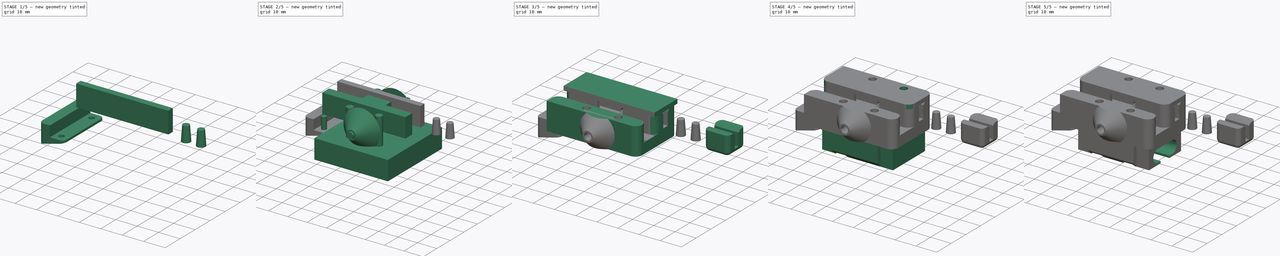
[diagram: build sequence overview — one tinted view per stage of 5, left to right]
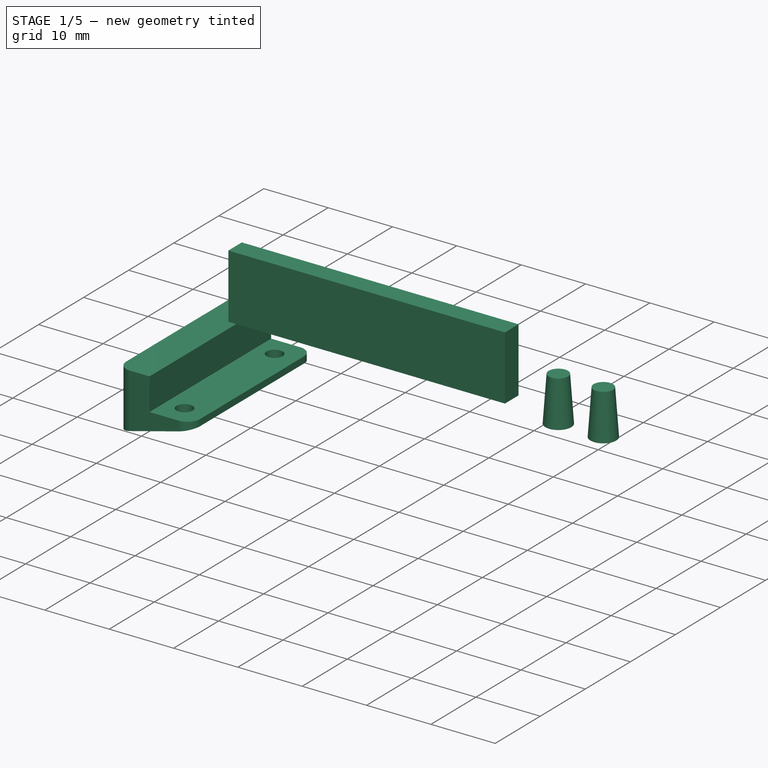
[diagram: stage 1 of 5 — iso view after this stage's code; geometry added in this stage tinted green]
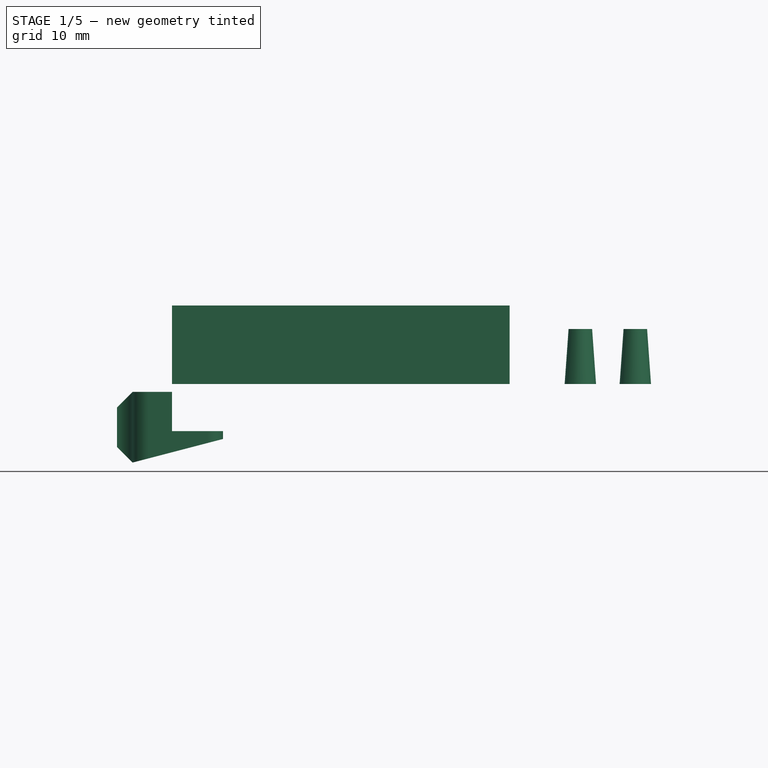
[diagram: stage 1 of 5 — front view after this stage's code; geometry added in this stage tinted green]
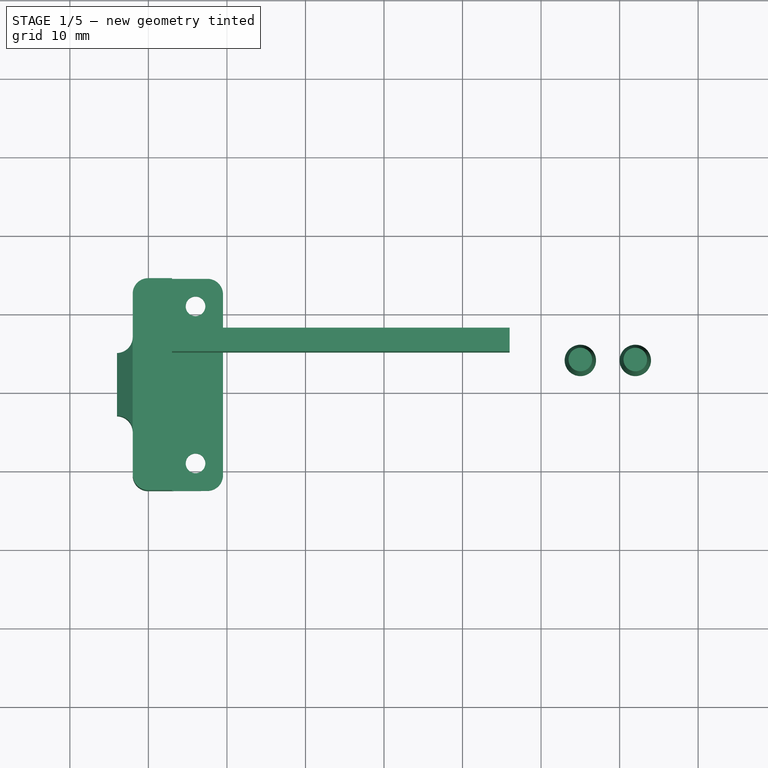
[diagram: stage 1 of 5 — top view after this stage's code; geometry added in this stage tinted green]
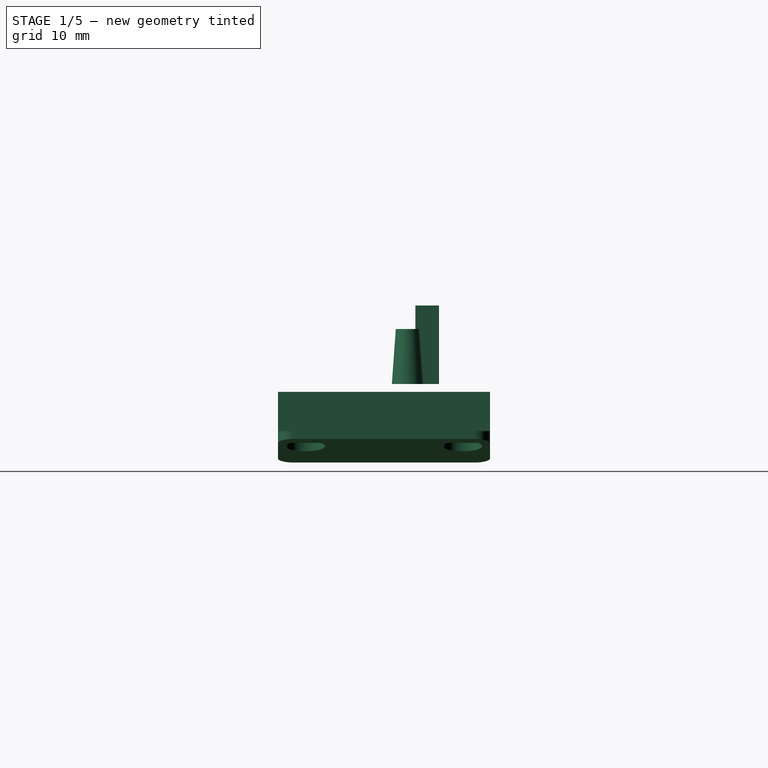
[diagram: stage 1 of 5 — right view after this stage's code; geometry added in this stage tinted green]
FCSTD DOCUMENT  (FreeCAD 0.14R3700 (Git))
Label: Igus-Carriage
License: CC-BY 3.0
LicenseURL: http://creativecommons.org/licenses/by/3.0/
objects: Part::Cylinder×24, Part::Box×17, Part::MultiFuse×12, Part::Cut×11, Part::Chamfer×6, Part::Cone×4, Part::Fillet×4, App::MeasureDistance×2, Sketcher::SketchObject×1, PartDesign::Pad×1, Part::Wedge×1
note: 82 computed .brp shape members not serialized (recipe doc carries the construction recipe); baked Part::Feature solids carry a one-line shape summary decoded from their .brp

FEATURE [Part::Box] Box026  label="DeltaBeltPocketRight"
  Height = 10
  Length = 43
  Placement = pos=(-7,15,16) rot=(0,0,1;0rad)
  Width = 3
FEATURE [Part::Cylinder] Cylinder059  label="Delta-M2.5-Head-1"
  Angle = 360
  Height = 2.5
  Placement = pos=(-4,1,6) rot=(0,0,1;0rad)
  Radius = 2.5
FEATURE [Part::Cylinder] Cylinder060  label="Delta-M2.5-Head-2"
  Angle = 360
  Height = 2.5
  Placement = pos=(-4,21,6) rot=(0,0,1;0rad)
  Radius = 2.5
FEATURE [Part::Cylinder] Cylinder061  label="Delta-M2.5-003"
  Angle = 360
  Height = 7
  Placement = pos=(-4,1,4) rot=(0,0,1;0rad)
  Radius = 1.25
FEATURE [Part::Cylinder] Cylinder062  label="Delta-M2.5-004"
  Angle = 360
  Height = 7
  Placement = pos=(-4,21,4) rot=(0,0,1;0rad)
  Radius = 1.25
FEATURE [Part::Cylinder] Cylinder063  label="Delta-M2.5-Top"
  Angle = 360
  Height = 7.5
  Placement = pos=(-15,11,10.5) rot=(0,1,0;1.5708rad)
  Radius = 1.25
FEATURE [Part::Box] Box028  label="DeltaCube"
  Height = 5
  Length = 6.5
  Placement = pos=(-7,-2.5,10) rot=(0,0,1;0rad)
  Width = 27
FEATURE [Part::Box] Box029  label="Cube010"
  Height = 9
  Length = 2
  Placement = pos=(-14,7,6) rot=(0,0,1;0rad)
  Width = 8
FEATURE [Part::MultiFuse] Fusion032  label="DeltaFusion"
  Shapes = -> [Cylinder059,Cylinder060,Cylinder061,Cylinder063,Box028,Cylinder062]
FEATURE [Part::Cone] Cone002  label="ConeGT2-1"
  Angle = 360
  Height = 7
  Placement = pos=(45,14,16) rot=(0,0,1;0rad)
  Radius1 = 2
  Radius2 = 1.5
FEATURE [Part::Cone] Cone003  label="ConeGT2-2"
  Angle = 360
  Height = 7
  Placement = pos=(52,14,16) rot=(0,0,1;0rad)
  Radius1 = 2
  Radius2 = 1.5
FEATURE [Part::Wedge] Wedge
  Placement = pos=(-12,24.5,6) rot=(0,0,-1;1.5708rad)
  X2max = 27
  X2min = 0
  Xmax = 27
  Xmin = 0
  Ymax = 11.5
  Ymin = 0
  Z2max = 9
  Z2min = 3
  Zmax = 9
  Zmin = 0
FEATURE [Part::MultiFuse] Fusion035
  Shapes = -> [Wedge,Box029]
FEATURE [Part::Cut] Cut047
  Base = -> Fusion035
  Tool = -> Fusion032
FEATURE [Part::Fillet] Fillet
  Base = -> Cut047
  Edges = 6 edges r=1.99: [Edge4,Edge6,Edge18,Edge28,Edge29,Edge30]
FEATURE [Part::Chamfer] Chamfer005  label="Contact-Adjust"
  Base = -> Fillet
  Edges = 2 edges r=1.99: [Edge46,Edge54]
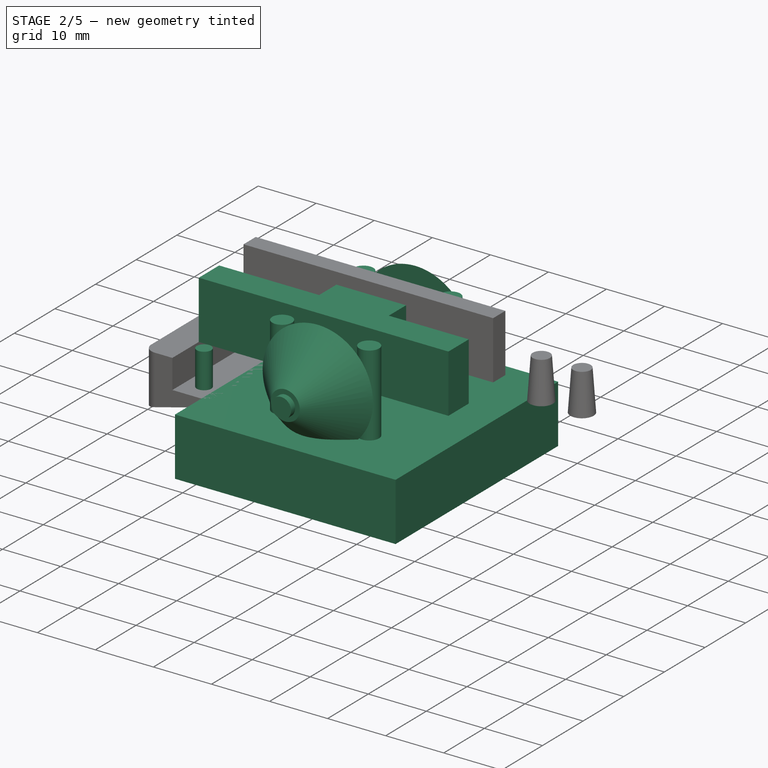
[diagram: stage 2 of 5 — iso view after this stage's code; geometry added in this stage tinted green]
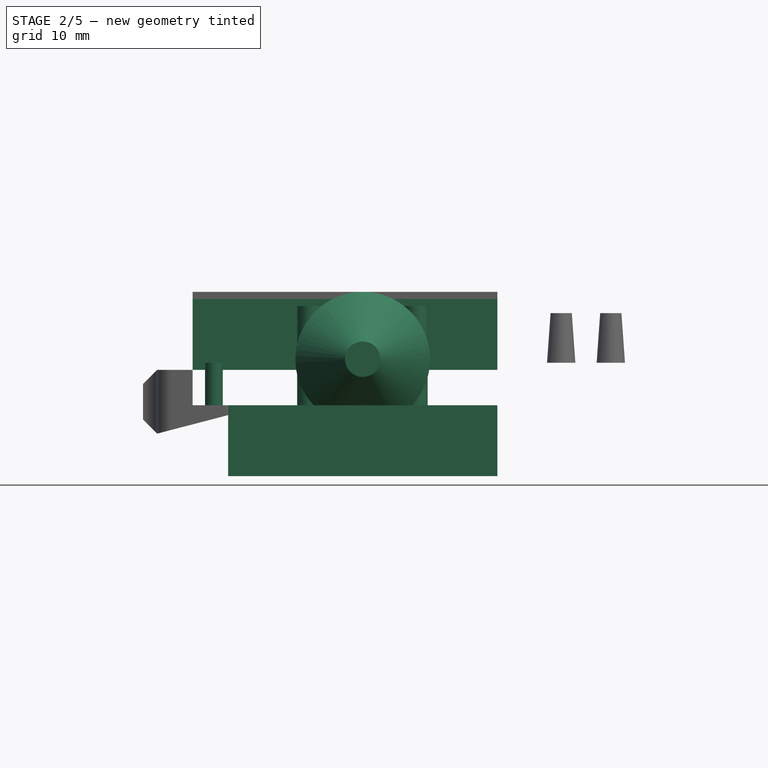
[diagram: stage 2 of 5 — front view after this stage's code; geometry added in this stage tinted green]
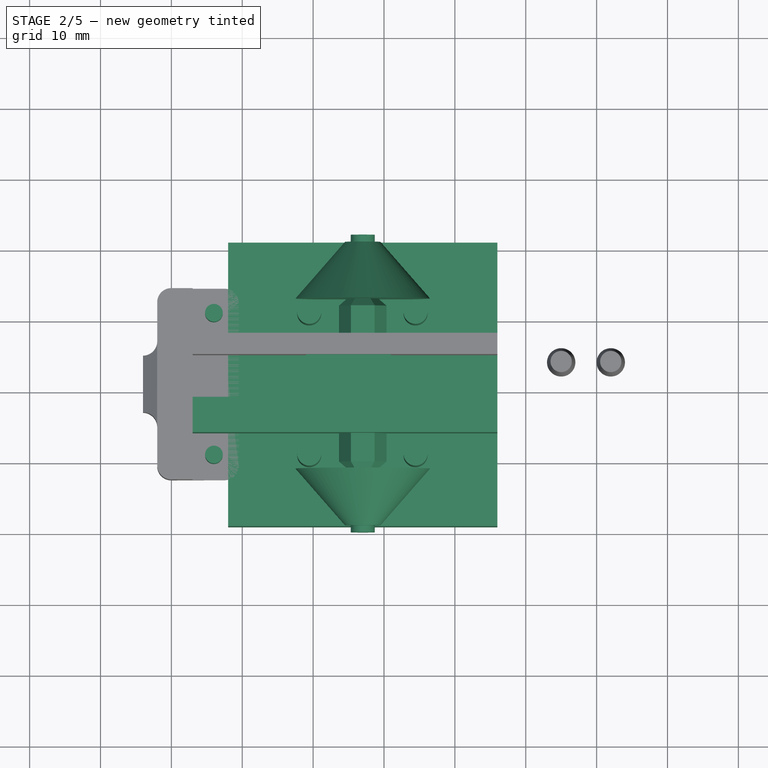
[diagram: stage 2 of 5 — top view after this stage's code; geometry added in this stage tinted green]
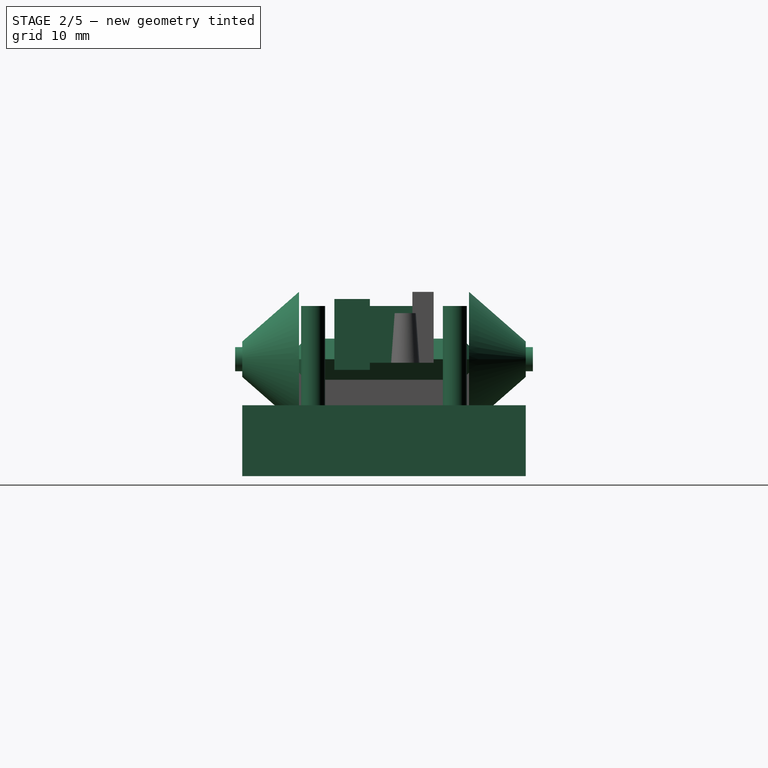
[diagram: stage 2 of 5 — right view after this stage's code; geometry added in this stage tinted green]
FEATURE [Part::Cylinder] Cylinder  label="DeltaM3Bore"
  Angle = 360
  Height = 42
  Placement = pos=(17,32,16.5) rot=(1,0,0;1.5708rad)
  Radius = 1.7
FEATURE [Part::Cone] Cone  label="ConeLeft"
  Angle = 360
  Height = 8
  Placement = pos=(17,-9,16.5) rot=(-1,0,0;1.5708rad)
  Radius1 = 2.5
  Radius2 = 9.5
FEATURE [Part::Cylinder] Cylinder011  label="Delta-M3-1"
  Angle = 360
  Height = 14
  Placement = pos=(9.45,1,10) rot=(0,0,1;0rad)
  Radius = 1.7
FEATURE [Part::Cylinder] Cylinder012  label="Delta-M3-2"
  Angle = 360
  Height = 14
  Placement = pos=(24.45,1,10) rot=(0,0,1;0rad)
  Radius = 1.7
FEATURE [Part::Cylinder] Cylinder013  label="Delta-M3-3"
  Angle = 360
  Height = 14
  Placement = pos=(9.45,21,10) rot=(0,0,1;0rad)
  Radius = 1.7
FEATURE [Part::Cylinder] Cylinder014  label="Delta-M3-4"
  Angle = 360
  Height = 14
  Placement = pos=(24.45,21,10) rot=(0,0,1;0rad)
  Radius = 1.7
FEATURE [Part::Cone] Cone001  label="ConeRight"
  Angle = 360
  Height = 8
  Placement = pos=(17,31,16.5) rot=(1,0,0;1.5708rad)
  Radius1 = 2.5
  Radius2 = 9.5
FEATURE [Part::Box] Box010  label="DeltaCutOffBottom"
  Height = 10
  Length = 38
  Placement = pos=(-2,-9,0) rot=(0,0,1;0rad)
  Width = 40
FEATURE [Sketcher::SketchObject] Sketch
  Placement = pos=(0,0,0) rot=(1,0,0;1.5708rad)
  sketch-geometry (6):
    g0: LineSegment StartX=-2.9 StartY=1.67432 StartZ=0 EndX=-2.9 EndY=-1.67432 EndZ=0
    g1: LineSegment StartX=-2.9 StartY=-1.67432 StartZ=0 EndX=0 EndY=-3.34863 EndZ=0
    g2: LineSegment StartX=0 StartY=-3.34863 StartZ=0 EndX=2.9 EndY=-1.67432 EndZ=0
    g3: LineSegment StartX=2.9 StartY=-1.67432 StartZ=0 EndX=2.9 EndY=1.67432 EndZ=0
    g4: LineSegment StartX=2.9 StartY=1.67432 StartZ=0 EndX=0 EndY=3.34863 EndZ=0
    g5: LineSegment StartX=0 StartY=3.34863 StartZ=0 EndX=-2.9 EndY=1.67432 EndZ=0
  constraints (18):
    c: Vertical(g0)
    c: Coincident(g0,g1)
    c: PointOnObject(g1,g-2)
    c: Coincident(g1,g2)
    c: Coincident(g2,g3)
    c: Vertical(g3)
    c: Coincident(g3,g4)
    c: PointOnObject(g4,g-2)
    c: Coincident(g4,g5)
    c: Coincident(g5,g0)
    c: Equal(g5,g0)
    c: Equal(g0,g1)
    c: Equal(g1,g2)
    c: Equal(g2,g3)
    c: Equal(g3,g4)
    c: Angle(g0,g5) = 2.0944
    c: Symmetric(g4,g1,g-1)
    c: DistanceX(g0,g3) = 5.8
FEATURE [PartDesign::Pad] Pad  label="Nut"
  Length = 24
  Length2 = 100
  Placement = pos=(0,0,0) rot=(1,0,0;1.5708rad)
  Sketch = -> Sketch
  Type = 0
FEATURE [Part::Chamfer] Chamfer002  label="DeltaNutTunnel"
  Base = -> Pad
  Edges = 12 edges r=1: [Edge3,Edge4,Edge6,Edge7,Edge9,Edge10,Edge12,Edge13,Edge15,Edge16,Edge17,Edge18]
  Placement = pos=(17,23,16.5) rot=(0,1,0;0.523599rad)
FEATURE [Part::Box] Box012  label="DeltaCutOutNutTunnel"
  Height = 8
  Length = 12
  Placement = pos=(9,4,16) rot=(0,0,1;0rad)
  Width = 14
FEATURE [Part::Box] Box016  label="DeltaBeltPocketLeft"
  Height = 10
  Length = 43
  Placement = pos=(-7,4,15) rot=(0,0,1;0rad)
  Width = 5
FEATURE [Part::Cylinder] Cylinder055  label="Delta-M2.5-1"
  Angle = 360
  Height = 7
  Placement = pos=(-4,1,9) rot=(0,0,1;0rad)
  Radius = 1.25
FEATURE [Part::Cylinder] Cylinder056  label="Delta-M2.5-2"
  Angle = 360
  Height = 7
  Placement = pos=(-4,21,9) rot=(0,0,1;0rad)
  Radius = 1.25
FEATURE [Part::MultiFuse] Fusion023  label="Cones"
  Shapes = -> [Cone001,Cone]
FEATURE [Part::MultiFuse] Fusion034  label="DeltaFusion001"
  Shapes = -> [Box012,Cylinder056,Cylinder011,Cylinder012,Cylinder014,Cylinder013,Box016,Cylinder055,Chamfer002,Cylinder,Box026]
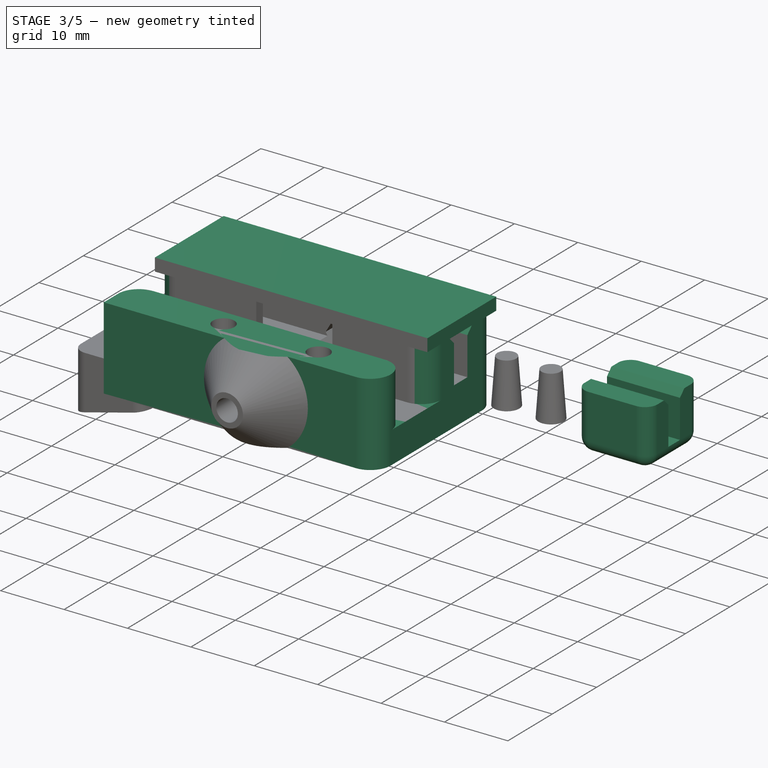
[diagram: stage 3 of 5 — iso view after this stage's code; geometry added in this stage tinted green]
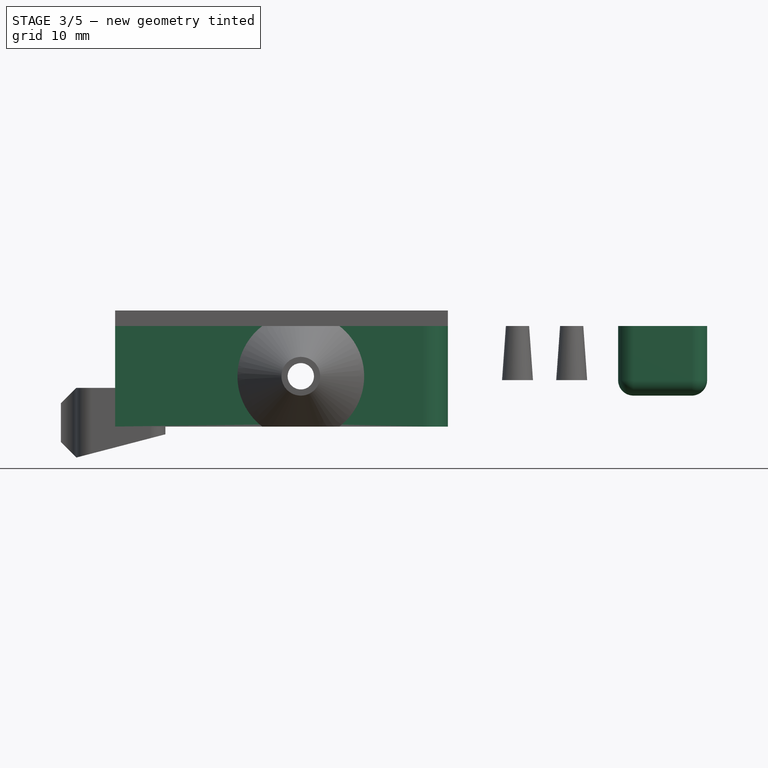
[diagram: stage 3 of 5 — front view after this stage's code; geometry added in this stage tinted green]
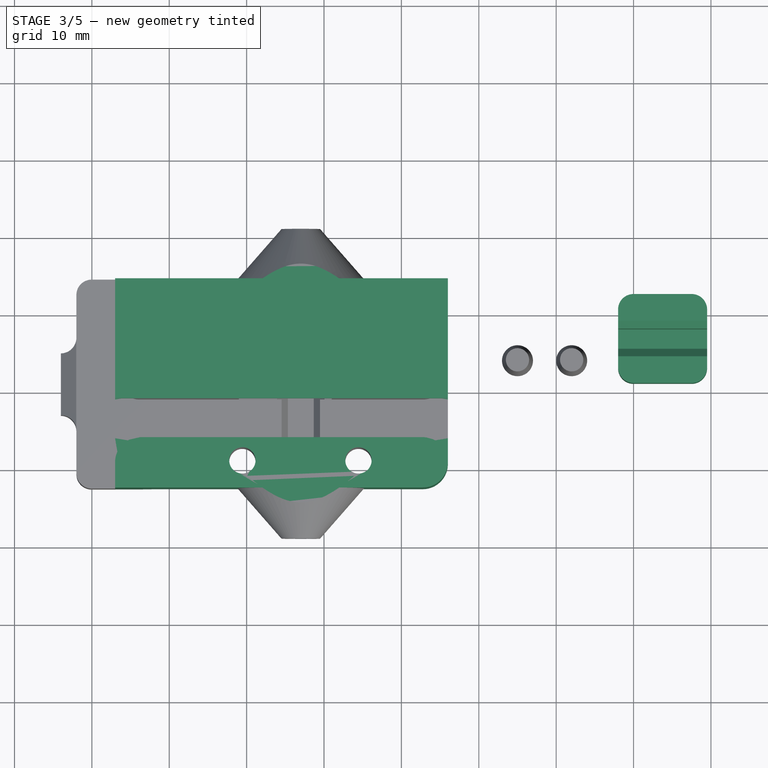
[diagram: stage 3 of 5 — top view after this stage's code; geometry added in this stage tinted green]
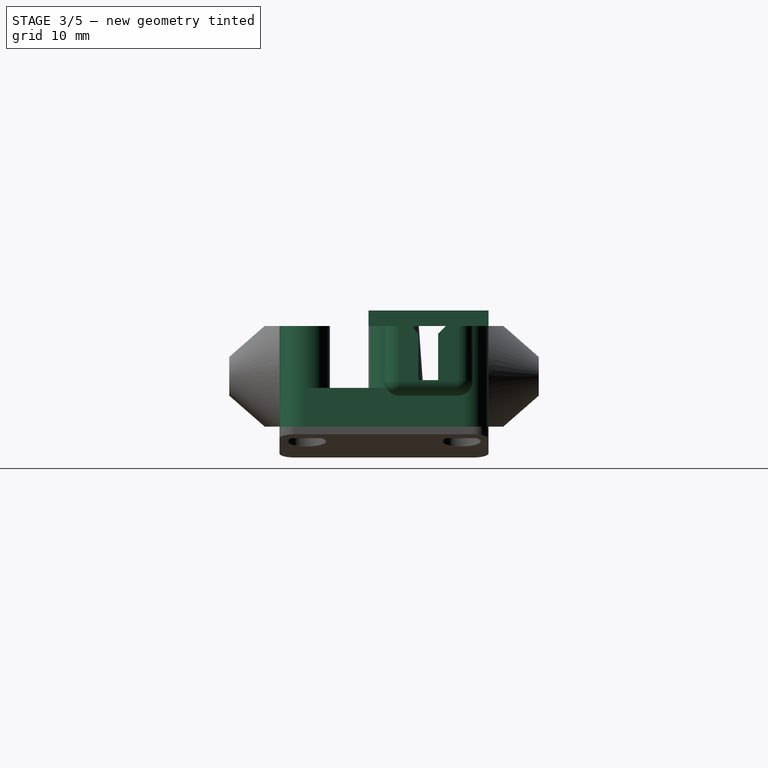
[diagram: stage 3 of 5 — right view after this stage's code; geometry added in this stage tinted green]
FEATURE [App::MeasureDistance] Distance  label="Distance: 20.000"
  Distance = 20
  P1 = (8,21,10.2)
  P2 = (8,1,10.2)
FEATURE [App::MeasureDistance] Distance001  label="Distance: 15.000"
  Distance = 15
  P1 = (9.5,-0.5,10.2)
  P2 = (24.5,-0.5,10.2)
FEATURE [Part::Box] Box005  label="Base"
  Height = 13
  Length = 43
  Placement = pos=(-7,-2.5,10) rot=(0,0,1;0rad)
  Width = 27
FEATURE [Part::Box] Box011  label="DeltaCutOffTop"
  Height = 10
  Length = 38
  Placement = pos=(-2,-9,23) rot=(0,0,1;0rad)
  Width = 40
FEATURE [Part::Box] Box020  label="Cube008"
  Height = 2
  Length = 43
  Placement = pos=(-7,9,23) rot=(0,0,1;0rad)
  Width = 15.5
FEATURE [Part::Cylinder] Cylinder057  label="DeltaCylinderM3"
  Angle = 360
  Height = 2
  Placement = pos=(9.5,21,23) rot=(0,0,1;0rad)
  Radius = 1.7
FEATURE [Part::Box] Box022  label="BeltClipLeft"
  Height = 7
  Length = 11.5
  Placement = pos=(40,9,16) rot=(0,0,1;0rad)
  Width = 4.45
FEATURE [Part::Box] Box023  label="BeltClipRight"
  Height = 7
  Length = 11.5
  Placement = pos=(40,16.05,16) rot=(0,0,1;0rad)
  Width = 4.45
FEATURE [Part::Box] Box025  label="BeltClipBase"
  Height = 2
  Length = 11.5
  Placement = pos=(40,9,14) rot=(0,0,1;0rad)
  Width = 11.5
FEATURE [Part::Cut] Cut039  label="Cut048"
  Base = -> Fusion023
  Tool = -> Box010
FEATURE [Part::Cut] Cut040  label="CutCones"
  Base = -> Cut039
  Tool = -> Box011
FEATURE [Part::MultiFuse] Fusion030
  Shapes = -> [Box022,Box025,Box023]
FEATURE [Part::Chamfer] Chamfer003
  Base = -> Fusion030
  Edges = 2 edges r=1: [Edge4,Edge33]
FEATURE [Part::Fillet] Fillet008  label="Belt-Clip"
  Base = -> Chamfer003
  Edges = 8 edges r=1.99: [Edge8,Edge12,Edge17,Edge21,Edge24,Edge28,Edge32,Edge36]
  Placement = pos=(18,2,0) rot=(0,0,1;0rad)
FEATURE [Part::MultiFuse] Fusion033
  Shapes = -> [Box005,Cut040]
FEATURE [Part::Cut] Cut046
  Base = -> Fusion033
  Tool = -> Fusion034
FEATURE [Part::Chamfer] Chamfer004
  Base = -> Cut046
  Edges = 7 edges: [Edge34 r=1,Edge37 r=4.5,Edge41 r=1,Edge48 r=1,Edge49 r=1,Edge150 r=1,Edge151 r=4.5]
FEATURE [Part::Fillet] Fillet009  label="Igus-Carriage"
  Base = -> Chamfer004
  Edges = 6 edges r=3.24: [Edge3,Edge7,Edge108,Edge111,Edge117,Edge118]
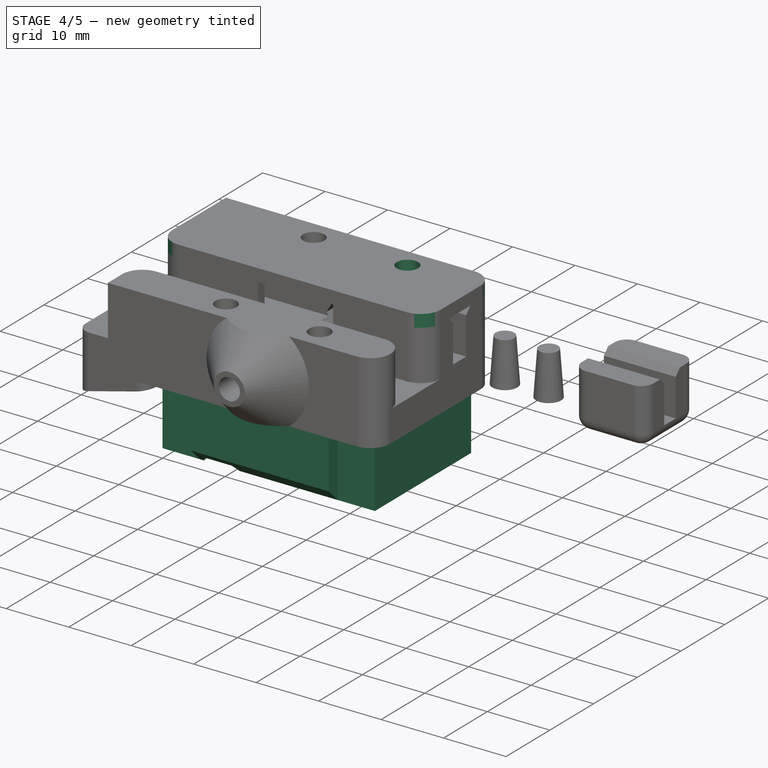
[diagram: stage 4 of 5 — iso view after this stage's code; geometry added in this stage tinted green]
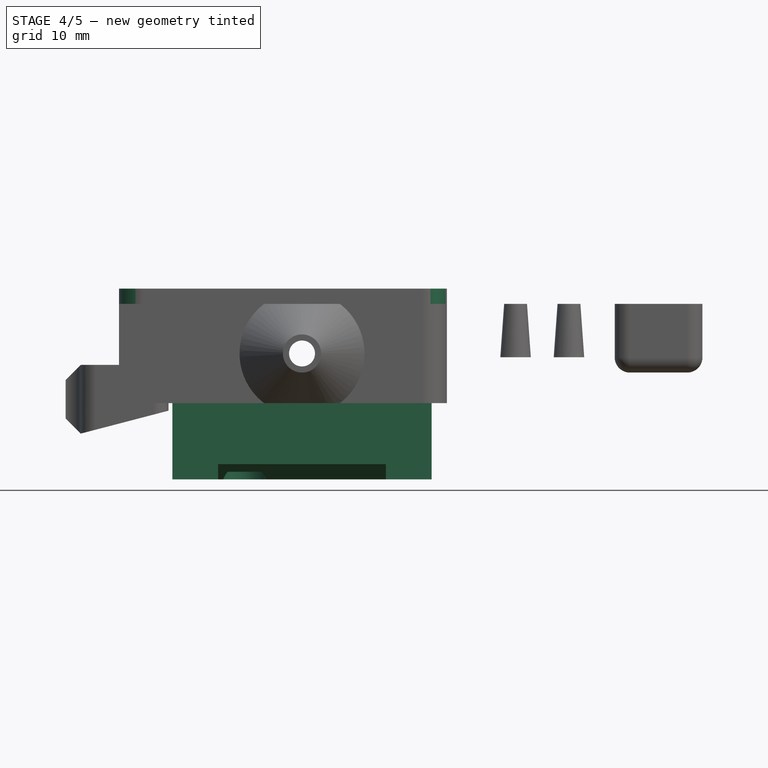
[diagram: stage 4 of 5 — front view after this stage's code; geometry added in this stage tinted green]
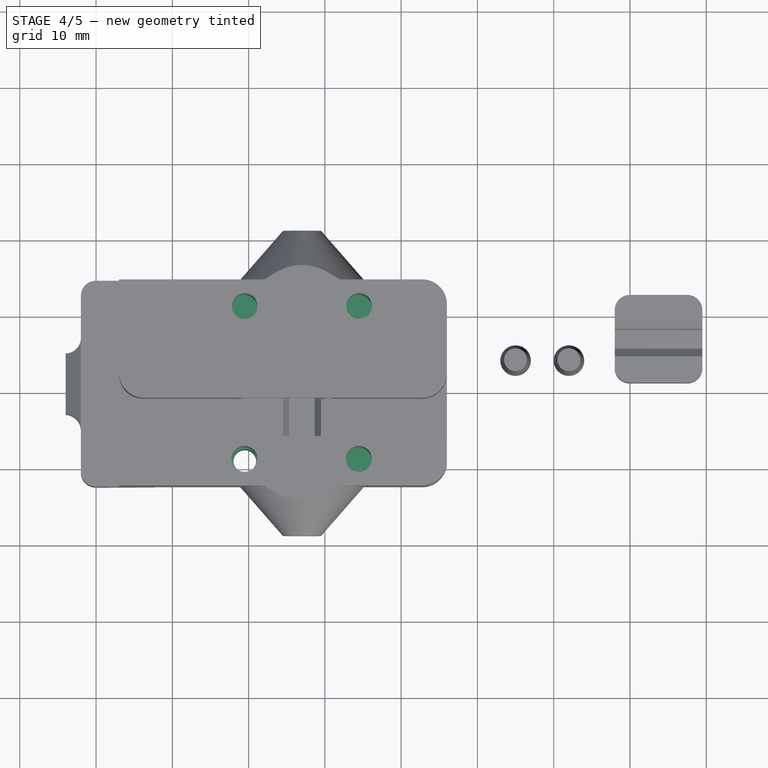
[diagram: stage 4 of 5 — top view after this stage's code; geometry added in this stage tinted green]
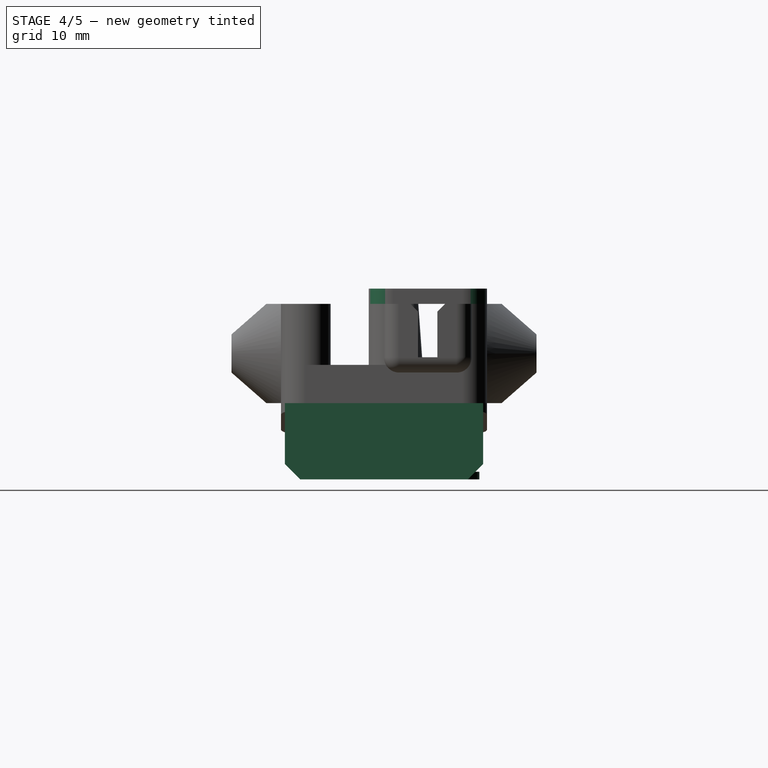
[diagram: stage 4 of 5 — right view after this stage's code; geometry added in this stage tinted green]
FEATURE [Part::Box] Box  label="Cube"
  Height = 10
  Length = 34
  Width = 22
FEATURE [Part::Box] Box001  label="Cube001"
  Height = 10.2
  Length = 22
  Placement = pos=(6,-2,0) rot=(0,0,1;0rad)
  Width = 7
FEATURE [Part::Box] Box002  label="Cube002"
  Height = 10.2
  Length = 22
  Placement = pos=(6,17,0) rot=(0,0,1;0rad)
  Width = 7
FEATURE [Part::Cylinder] Cylinder001
  Angle = 360
  Height = 11
  Placement = pos=(9,1.5,0) rot=(0,0,1;0rad)
  Radius = 1.5
FEATURE [Part::Cylinder] Cylinder002
  Angle = 360
  Height = 11
  Placement = pos=(25,20.5,0) rot=(0,0,1;0rad)
  Radius = 1.5
FEATURE [Part::Cylinder] Cylinder007
  Angle = 360
  Height = 1
  Placement = pos=(9,1.5,0) rot=(0,0,1;0rad)
  Radius = 3
FEATURE [Part::Cylinder] Cylinder010
  Angle = 360
  Height = 1
  Placement = pos=(25,20.5,0) rot=(0,0,1;0rad)
  Radius = 3
FEATURE [Part::MultiFuse] Fusion001
  Placement = pos=(0.5,-0.5,0) rot=(0,0,1;0rad)
  Shapes = -> [Cylinder001,Cylinder007]
FEATURE [Part::Chamfer] Chamfer
  Base = -> Box001
  Edges = 1 edges r=2: [Edge9]
FEATURE [Part::Chamfer] Chamfer001
  Base = -> Box002
  Edges = 1 edges r=2: [Edge11]
FEATURE [Part::MultiFuse] Fusion
  Shapes = -> [Box,Chamfer,Chamfer001]
FEATURE [Part::Cut] Cut
  Base = -> Fusion
  Tool = -> Fusion001
FEATURE [Part::Cylinder] Cylinder058  label="DeltaCylinderM3-2"
  Angle = 360
  Height = 2
  Placement = pos=(24.5,21,23) rot=(0,0,1;0rad)
  Radius = 1.7
FEATURE [Part::Cut] Cut043
  Base = -> Box020
  Tool = -> Cylinder057
FEATURE [Part::Cut] Cut044  label="Cut051"
  Base = -> Cut043
  Tool = -> Cylinder058
FEATURE [Part::Fillet] Fillet007  label="Belt-Cover"
  Base = -> Cut044
  Edges = 3 edges r=3.24: [Edge1,Edge6,Edge13]
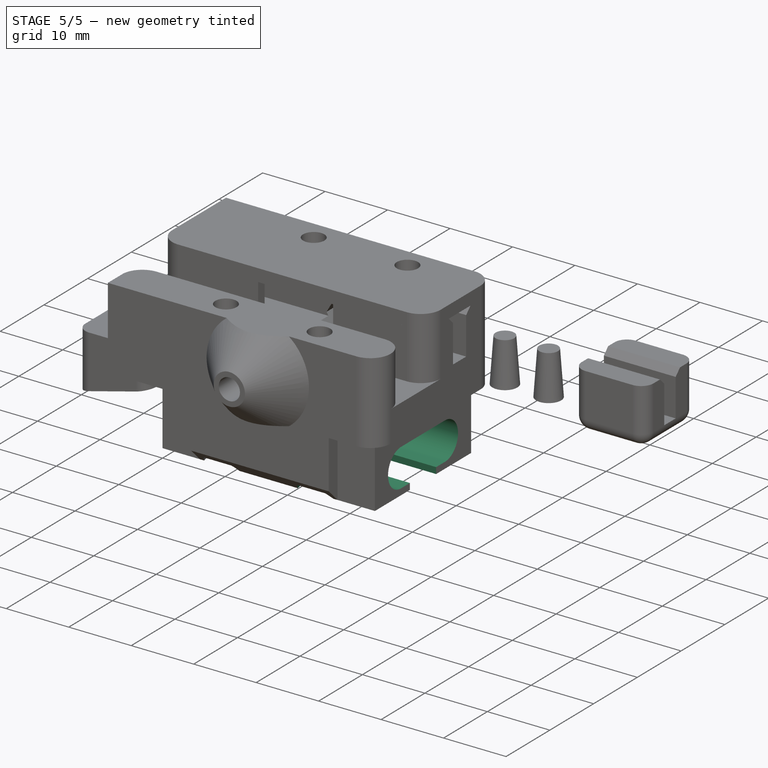
[diagram: stage 5 of 5 — iso view after this stage's code; geometry added in this stage tinted green]
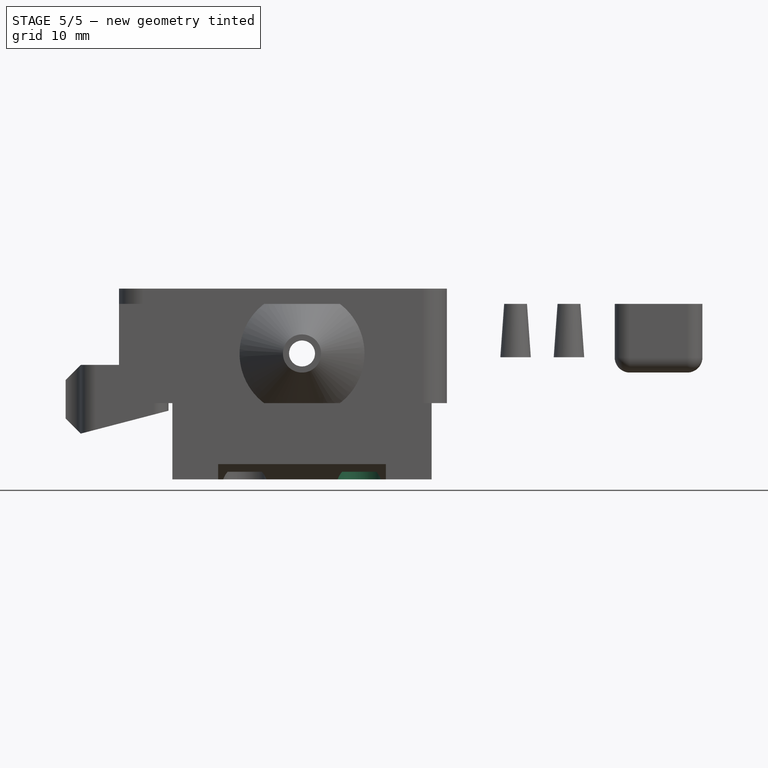
[diagram: stage 5 of 5 — front view after this stage's code; geometry added in this stage tinted green]
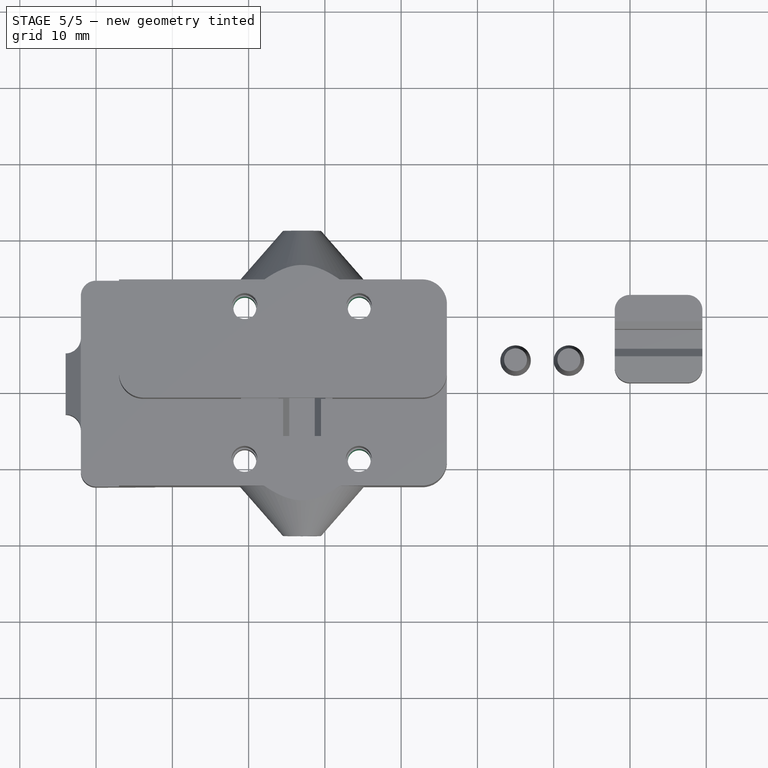
[diagram: stage 5 of 5 — top view after this stage's code; geometry added in this stage tinted green]
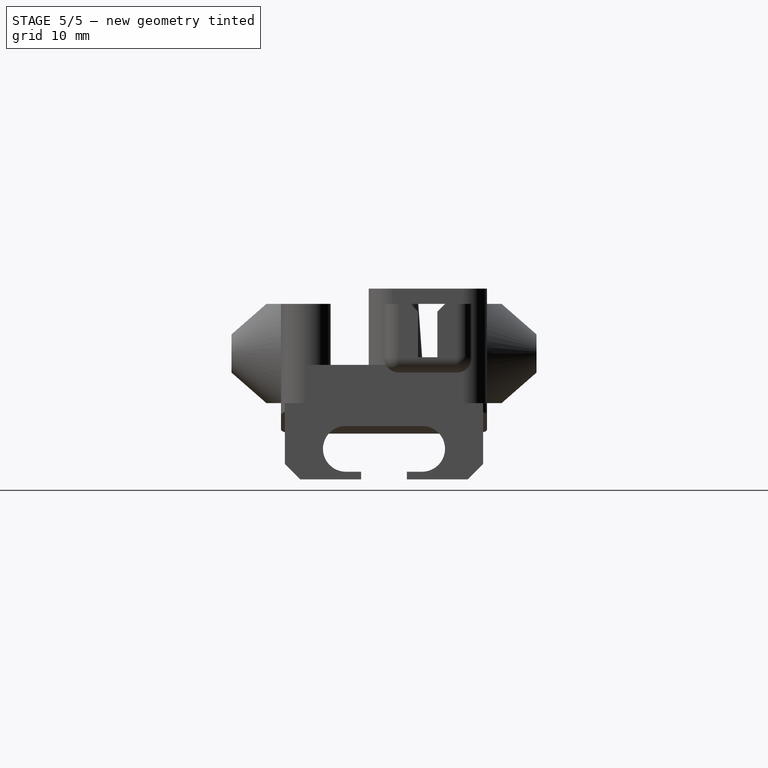
[diagram: stage 5 of 5 — right view after this stage's code; geometry added in this stage tinted green]
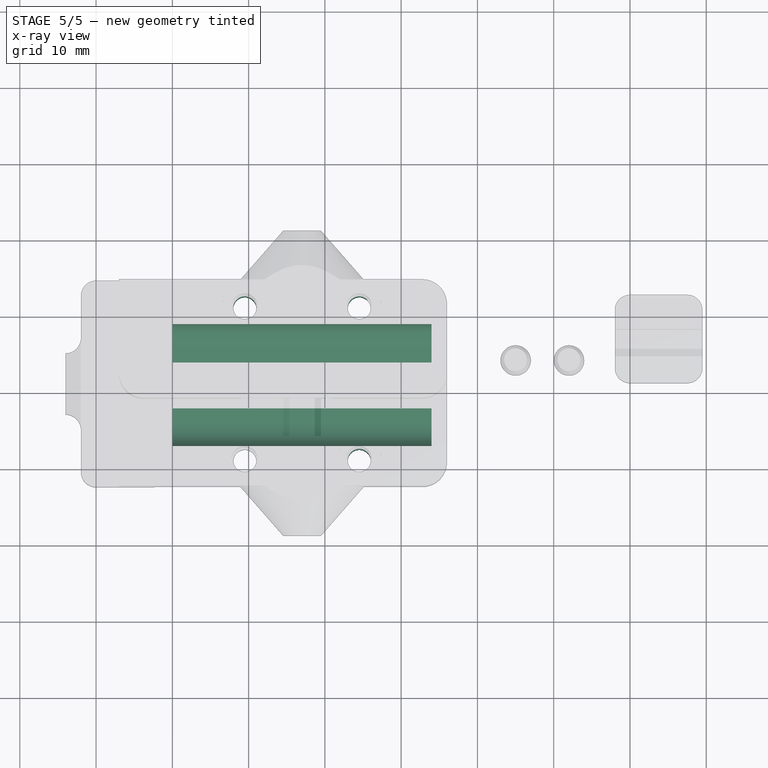
[diagram: stage 5 of 5 — x-ray composite at the top view; earlier geometry ghosted, this stage's added geometry solid]
FEATURE [Part::Cylinder] Cylinder003
  Angle = 360
  Height = 11
  Placement = pos=(9,20.5,0) rot=(0,0,1;0rad)
  Radius = 1.5
FEATURE [Part::Cylinder] Cylinder004
  Angle = 360
  Height = 11
  Placement = pos=(25,1.5,0) rot=(0,0,1;0rad)
  Radius = 1.5
FEATURE [Part::Cylinder] Cylinder005
  Angle = 360
  Height = 34
  Placement = pos=(0,6,4) rot=(0,1,0;1.5708rad)
  Radius = 3
FEATURE [Part::Box] Box003  label="Cube003"
  Height = 6
  Length = 34
  Placement = pos=(0,6,1) rot=(0,0,1;0rad)
  Width = 10
FEATURE [Part::Cylinder] Cylinder006
  Angle = 360
  Height = 34
  Placement = pos=(0,16,4) rot=(0,1,0;1.5708rad)
  Radius = 3
FEATURE [Part::Box] Box004  label="Cube004"
  Height = 1
  Length = 34
  Placement = pos=(0,8,0) rot=(0,0,1;0rad)
  Width = 6
FEATURE [Part::Cylinder] Cylinder008
  Angle = 360
  Height = 1
  Placement = pos=(25,1.5,0) rot=(0,0,1;0rad)
  Radius = 3
FEATURE [Part::Cylinder] Cylinder009
  Angle = 360
  Height = 1
  Placement = pos=(9,20.5,0) rot=(0,0,1;0rad)
  Radius = 3
FEATURE [Part::MultiFuse] Fusion002
  Placement = pos=(-0.5,0.5,0) rot=(0,0,1;0rad)
  Shapes = -> [Cylinder002,Cylinder010]
FEATURE [Part::MultiFuse] Fusion003
  Placement = pos=(0.5,0.5,0) rot=(0,0,1;0rad)
  Shapes = -> [Cylinder003,Cylinder009]
FEATURE [Part::MultiFuse] Fusion004
  Placement = pos=(-0.5,-0.5,0) rot=(0,0,1;0rad)
  Shapes = -> [Cylinder004,Cylinder008]
FEATURE [Part::MultiFuse] Fusion005
  Shapes = -> [Cylinder005,Box003,Cylinder006,Box004]
FEATURE [Part::Cut] Cut001
  Base = -> Cut
  Tool = -> Fusion002
FEATURE [Part::Cut] Cut002
  Base = -> Cut001
  Tool = -> Fusion003
FEATURE [Part::Cut] Cut003
  Base = -> Cut002
  Tool = -> Fusion004
FEATURE [Part::Cut] Cut004  label="DO_NOT_PRINT-Igus-Slider"
  Base = -> Cut003
  Tool = -> Fusion005
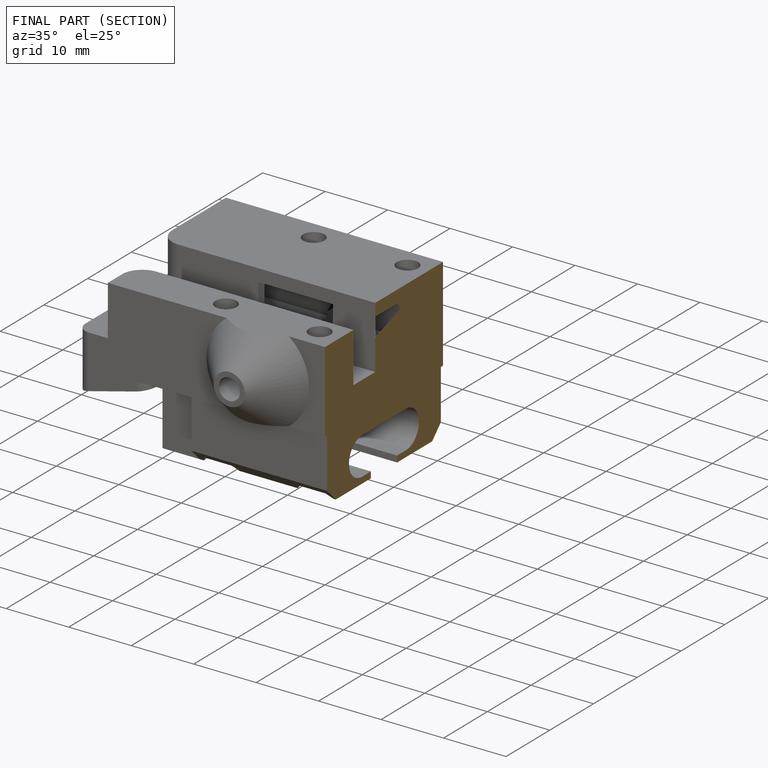
[diagram: finished part — half-section view (interior)]
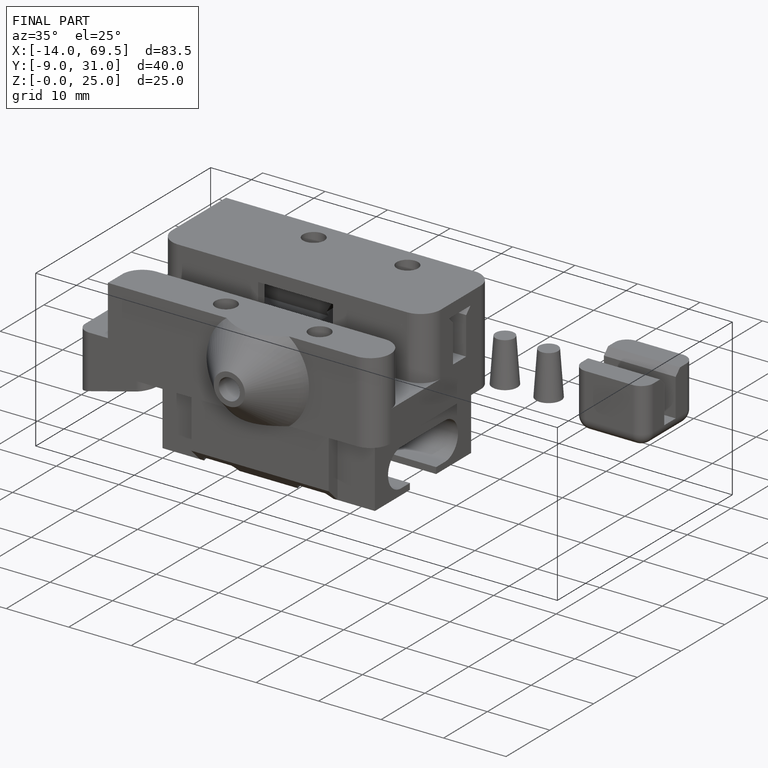
[diagram: finished part — iso view with bounding-box wireframe]
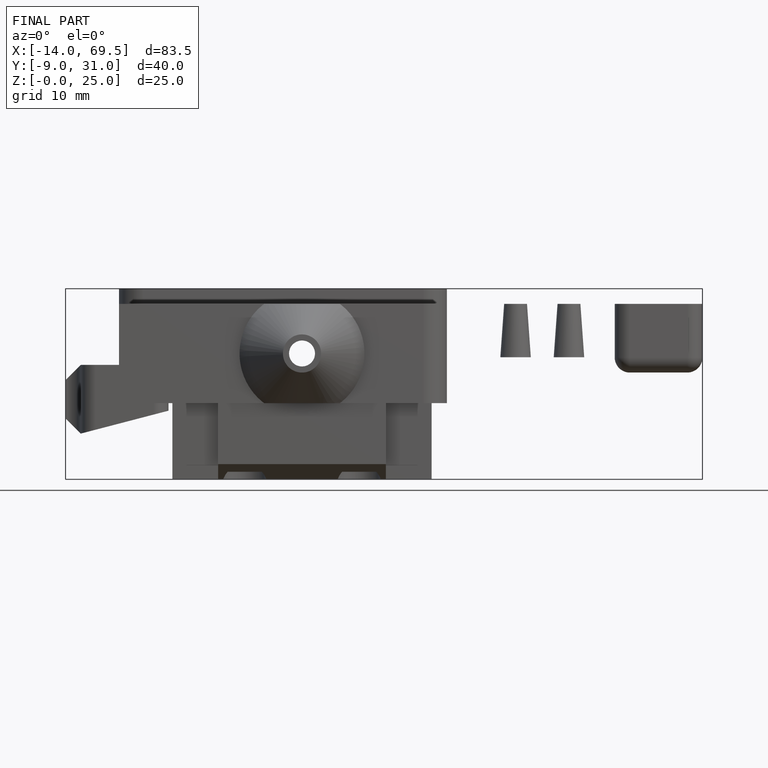
[diagram: finished part — front view with bounding-box wireframe]
